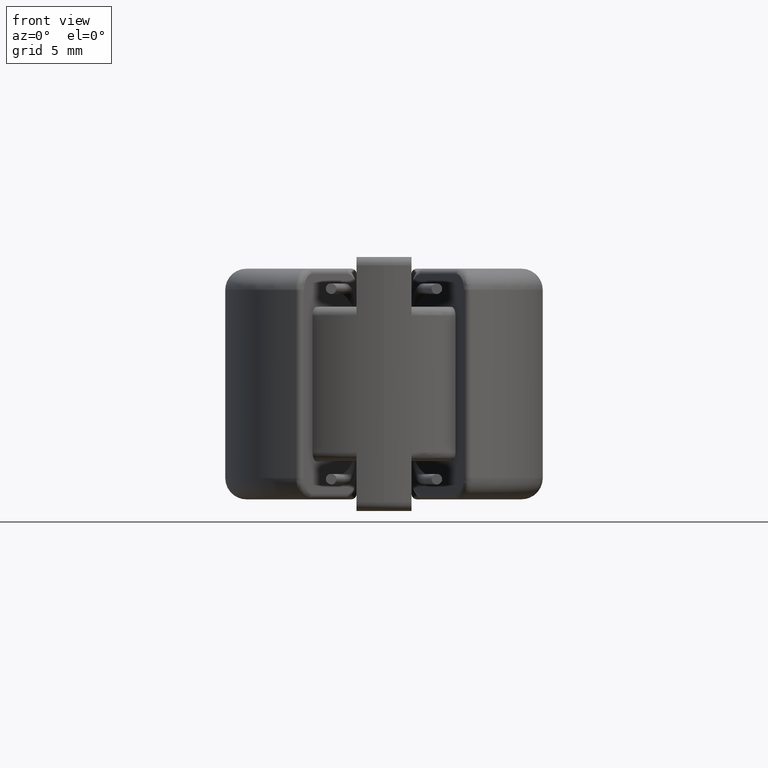
[diagram: clean part render]
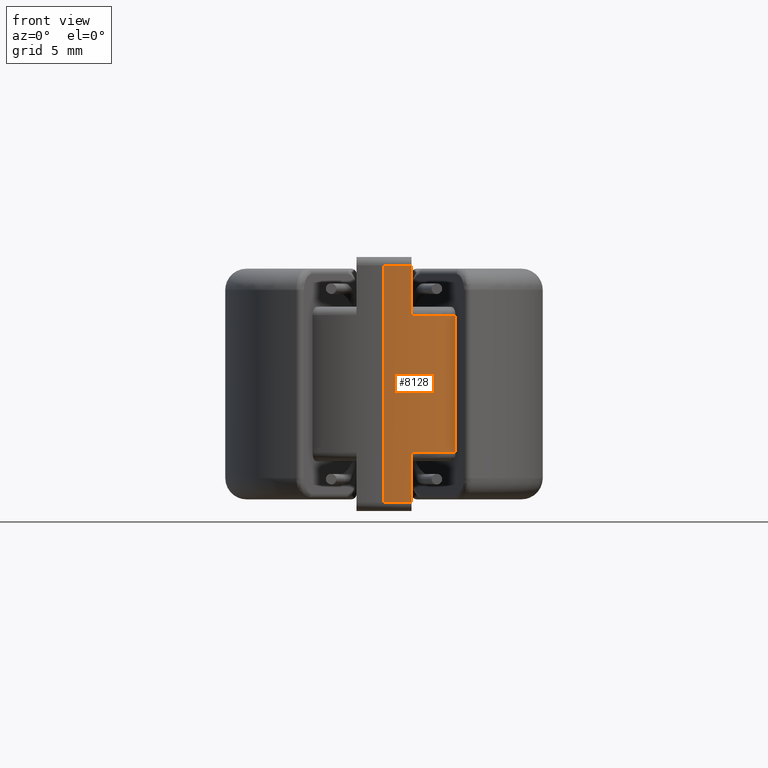
[diagram: same view with one face highlighted and labeled with its STEP entity id]
A machine part, front view. The second image highlights one B-rep face of the part: STEP entity #8128.
In plain terms, the highlighted cylindrical surface (partial cylindrical patch) has radius 6.4 mm, axis along (0, 0, 1).
Its self-contained STEP definition (entity closure, byte-faithful):
#73 = ORIENTED_EDGE ( 'NONE', *, *, #10377, .T. ) ;
#823 = DIRECTION ( 'NONE',  ( 0.0000000000000000000, 0.0000000000000000000, 1.000000000000000000 ) ) ;
#1086 = CIRCLE ( 'NONE', #6137, 6.400000000000000355 ) ;
#1232 = DIRECTION ( 'NONE',  ( -0.0000000000000000000, -0.0000000000000000000, 1.000000000000000000 ) ) ;
#1425 = EDGE_CURVE ( 'NONE', #7790, #9640, #7601, .T. ) ;
#1485 = DIRECTION ( 'NONE',  ( 0.0000000000000000000, 0.0000000000000000000, 1.000000000000000000 ) ) ;
#1564 = DIRECTION ( 'NONE',  ( -0.0000000000000000000, -0.0000000000000000000, 1.000000000000000000 ) ) ;
#1636 = ORIENTED_EDGE ( 'NONE', *, *, #4187, .T. ) ;
#1959 = CARTESIAN_POINT ( 'NONE',  ( 1.299999999999998934, -6.266578013557320581, -3.250000000000000000 ) ) ;
#1989 = DIRECTION ( 'NONE',  ( 0.0000000000000000000, 0.0000000000000000000, 1.000000000000000000 ) ) ;
#2273 = AXIS2_PLACEMENT_3D ( 'NONE', #6166, #1232, #10192 ) ;
#2528 = CARTESIAN_POINT ( 'NONE',  ( 0.0000000000000000000, 0.0000000000000000000, -5.599999999999999645 ) ) ;
#2573 = CARTESIAN_POINT ( 'NONE',  ( 0.0000000000000000000, 0.0000000000000000000, -3.649999999999999911 ) ) ;
#2905 = VECTOR ( 'NONE', #1485, 1000.000000000000000 ) ;
#3090 = EDGE_CURVE ( 'NONE', #6133, #8315, #10602, .T. ) ;
#3117 = VECTOR ( 'NONE', #7282, 1000.000000000000000 ) ;
#3243 = CARTESIAN_POINT ( 'NONE',  ( 0.0000000000000000000, -6.400000000000000355, -5.599999999999999645 ) ) ;
#3331 = VERTEX_POINT ( 'NONE', #3481 ) ;
#3368 = VECTOR ( 'NONE', #9929, 1000.000000000000000 ) ;
#3427 = CARTESIAN_POINT ( 'NONE',  ( 0.0000000000000000000, 0.0000000000000000000, 3.250000000000000000 ) ) ;
#3481 = CARTESIAN_POINT ( 'NONE',  ( 0.0000000000000000000, -6.400000000000000355, 5.599999999999998757 ) ) ;
#3683 = EDGE_CURVE ( 'NONE', #6340, #6133, #1086, .T. ) ;
#3739 = CARTESIAN_POINT ( 'NONE',  ( 1.299999999999998934, -6.266578013557320581, -5.450000000000000178 ) ) ;
#3797 = CARTESIAN_POINT ( 'NONE',  ( 3.375998930785038432, -5.437152859662700344, 3.250000000000000000 ) ) ;
#3836 = LINE ( 'NONE', #9423, #5900 ) ;
#3847 = CARTESIAN_POINT ( 'NONE',  ( 3.375998930785038432, -5.437152859662700344, -3.250000000000000000 ) ) ;
#3861 = DIRECTION ( 'NONE',  ( 0.0000000000000000000, 1.000000000000000000, 0.0000000000000000000 ) ) ;
#3989 = AXIS2_PLACEMENT_3D ( 'NONE', #8793, #7982, #3861 ) ;
#4187 = EDGE_CURVE ( 'NONE', #9640, #4243, #8667, .T. ) ;
#4243 = VERTEX_POINT ( 'NONE', #1959 ) ;
#4255 = DIRECTION ( 'NONE',  ( 0.0000000000000000000, 0.0000000000000000000, -1.000000000000000000 ) ) ;
#5034 = CIRCLE ( 'NONE', #2273, 6.400000000000000355 ) ;
#5047 = ORIENTED_EDGE ( 'NONE', *, *, #3090, .T. ) ;
#5117 = CIRCLE ( 'NONE', #3989, 6.400000000000000355 ) ;
#5223 = EDGE_CURVE ( 'NONE', #4243, #9932, #5034, .T. ) ;
#5407 = AXIS2_PLACEMENT_3D ( 'NONE', #2573, #823, #5817 ) ;
#5572 = ORIENTED_EDGE ( 'NONE', *, *, #3683, .T. ) ;
#5817 = DIRECTION ( 'NONE',  ( 0.0000000000000000000, -1.000000000000000000, 0.0000000000000000000 ) ) ;
#5900 = VECTOR ( 'NONE', #1989, 1000.000000000000000 ) ;
#6133 = VERTEX_POINT ( 'NONE', #9593 ) ;
#6137 = AXIS2_PLACEMENT_3D ( 'NONE', #3427, #4255, #10048 ) ;
#6166 = CARTESIAN_POINT ( 'NONE',  ( 0.0000000000000000000, 0.0000000000000000000, -3.250000000000000000 ) ) ;
#6340 = VERTEX_POINT ( 'NONE', #3797 ) ;
#6408 = CARTESIAN_POINT ( 'NONE',  ( 1.299999999999998934, -6.266578013557320581, -5.450000000000000178 ) ) ;
#6557 = CARTESIAN_POINT ( 'NONE',  ( 3.375998930785038432, -5.437152859662700344, -3.649999999999999911 ) ) ;
#6562 = CARTESIAN_POINT ( 'NONE',  ( 1.299999999999998934, -6.266578013557320581, -5.599999999999999645 ) ) ;
#7282 = DIRECTION ( 'NONE',  ( 0.0000000000000000000, 0.0000000000000000000, 1.000000000000000000 ) ) ;
#7480 = CYLINDRICAL_SURFACE ( 'NONE', #5407, 6.400000000000000355 ) ;
#7601 = CIRCLE ( 'NONE', #8831, 6.400000000000000355 ) ;
#7765 = EDGE_CURVE ( 'NONE', #6340, #9932, #9045, .T. ) ;
#7790 = VERTEX_POINT ( 'NONE', #3243 ) ;
#7982 = DIRECTION ( 'NONE',  ( 0.0000000000000000000, 0.0000000000000000000, -1.000000000000000000 ) ) ;
#7991 = FACE_OUTER_BOUND ( 'NONE', #9189, .T. ) ;
#8128 = ADVANCED_FACE ( 'NONE', ( #7991 ), #7480, .T. ) ;
#8315 = VERTEX_POINT ( 'NONE', #9028 ) ;
#8436 = ORIENTED_EDGE ( 'NONE', *, *, #5223, .T. ) ;
#8571 = ORIENTED_EDGE ( 'NONE', *, *, #1425, .T. ) ;
#8667 = LINE ( 'NONE', #3739, #2905 ) ;
#8793 = CARTESIAN_POINT ( 'NONE',  ( 0.0000000000000000000, 0.0000000000000000000, 5.599999999999998757 ) ) ;
#8831 = AXIS2_PLACEMENT_3D ( 'NONE', #2528, #1564, #10722 ) ;
#8954 = ORIENTED_EDGE ( 'NONE', *, *, #10425, .F. ) ;
#9028 = CARTESIAN_POINT ( 'NONE',  ( 1.299999999999998934, -6.266578013557320581, 5.599999999999998757 ) ) ;
#9045 = LINE ( 'NONE', #6557, #3368 ) ;
#9189 = EDGE_LOOP ( 'NONE', ( #8954, #8571, #1636, #8436, #9449, #5572, #5047, #73 ) ) ;
#9423 = CARTESIAN_POINT ( 'NONE',  ( 0.0000000000000000000, -6.400000000000000355, -3.649999999999999911 ) ) ;
#9449 = ORIENTED_EDGE ( 'NONE', *, *, #7765, .F. ) ;
#9593 = CARTESIAN_POINT ( 'NONE',  ( 1.299999999999998934, -6.266578013557320581, 3.250000000000000000 ) ) ;
#9640 = VERTEX_POINT ( 'NONE', #6562 ) ;
#9929 = DIRECTION ( 'NONE',  ( -0.0000000000000000000, -0.0000000000000000000, -1.000000000000000000 ) ) ;
#9932 = VERTEX_POINT ( 'NONE', #3847 ) ;
#10048 = DIRECTION ( 'NONE',  ( 0.0000000000000000000, 1.000000000000000000, 0.0000000000000000000 ) ) ;
#10192 = DIRECTION ( 'NONE',  ( 0.0000000000000000000, 1.000000000000000000, 0.0000000000000000000 ) ) ;
#10377 = EDGE_CURVE ( 'NONE', #8315, #3331, #5117, .T. ) ;
#10425 = EDGE_CURVE ( 'NONE', #7790, #3331, #3836, .T. ) ;
#10602 = LINE ( 'NONE', #6408, #3117 ) ;
#10722 = DIRECTION ( 'NONE',  ( 0.0000000000000000000, 1.000000000000000000, 0.0000000000000000000 ) ) ;